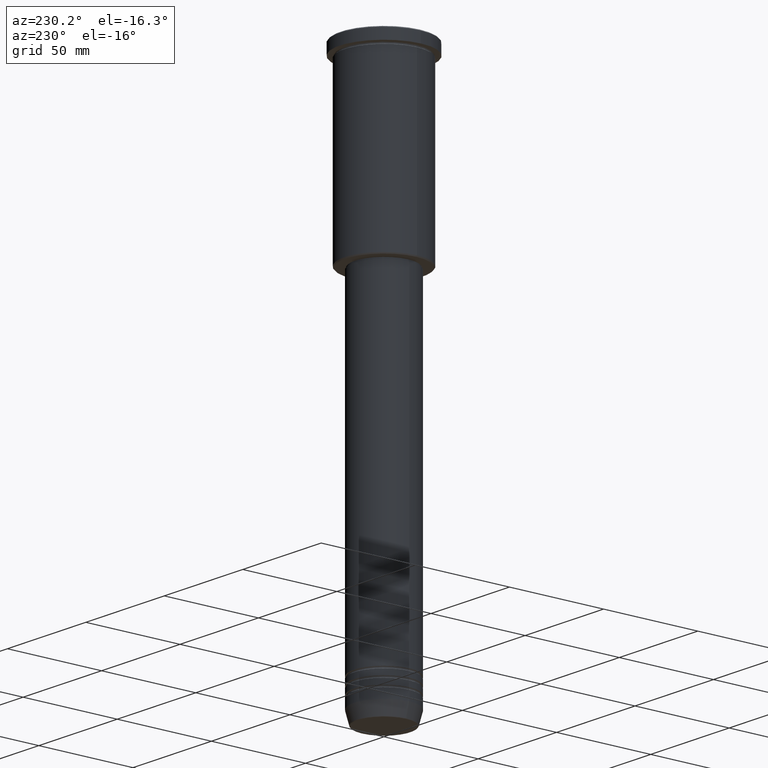
[diagram: clean part render]
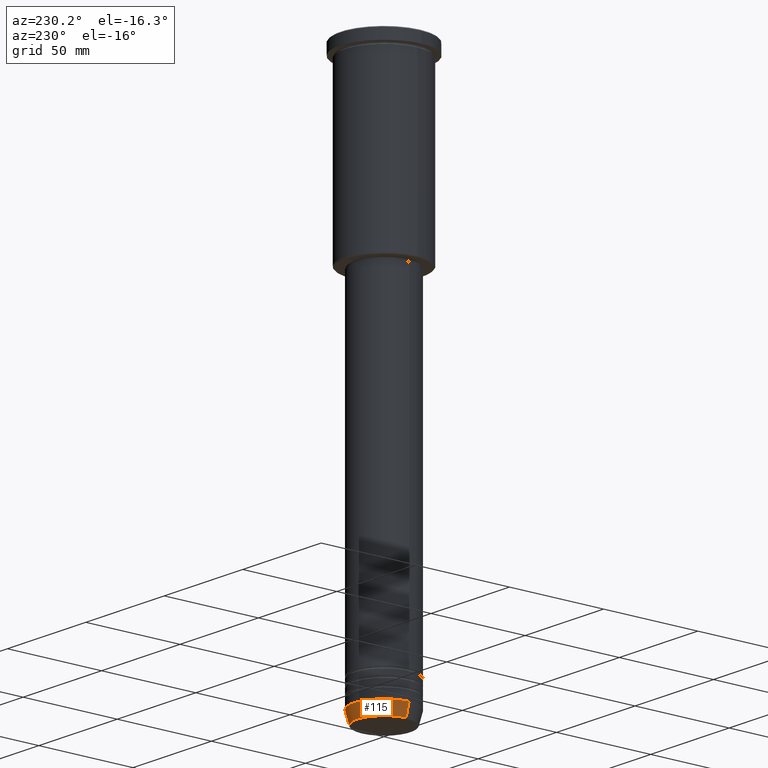
[diagram: same view with one face highlighted and labeled with its STEP entity id]
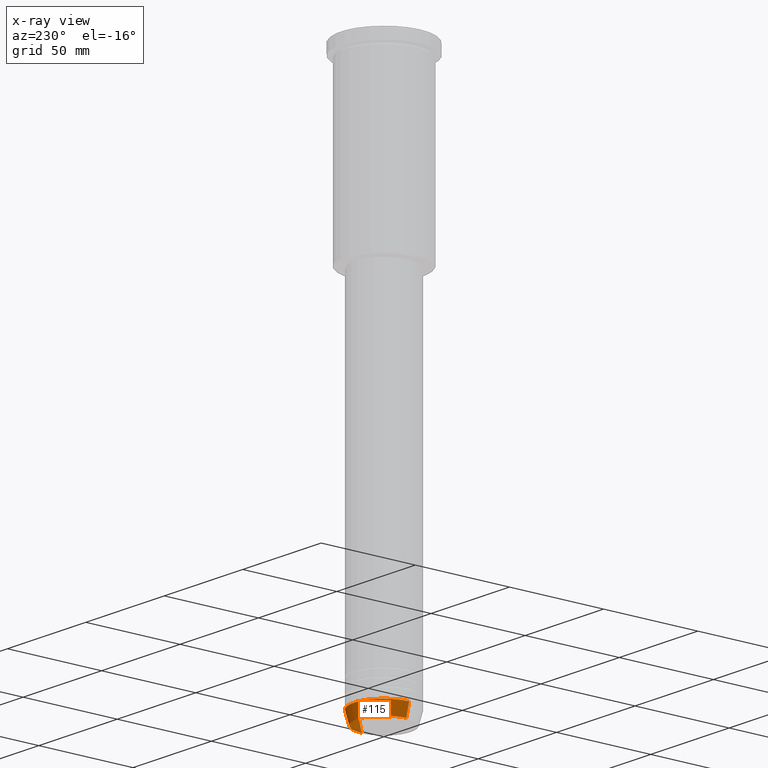
[diagram: x-ray of the same camera — body ghosted, the highlighted face saturated]
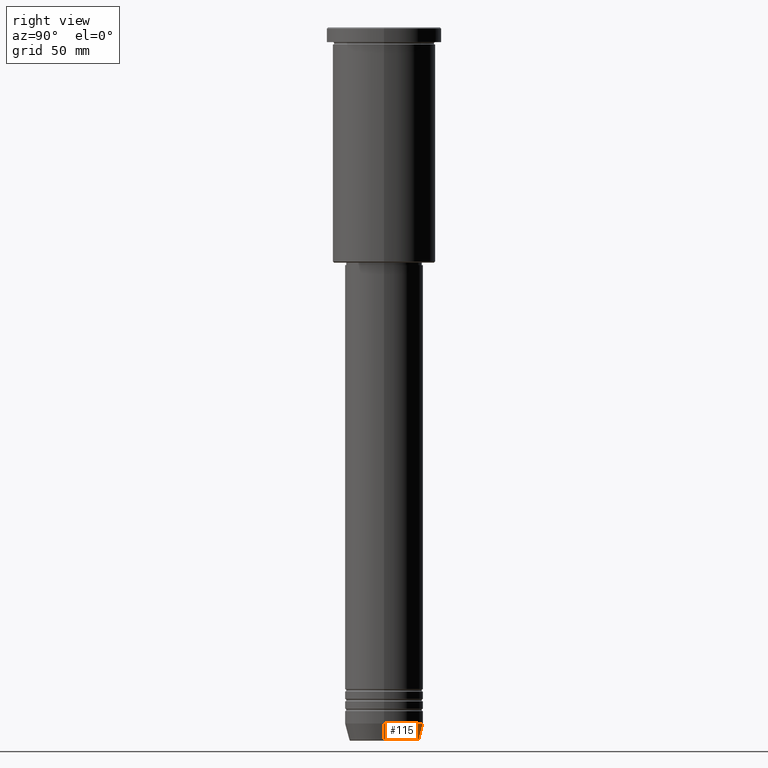
[diagram: same view with one face highlighted and labeled with its STEP entity id]
A machine part, auxiliary view. The second image highlights one B-rep face of the part: STEP entity #115.
The next image is the same camera in x-ray: the body ghosted, the highlighted face saturated — about 0% of this face is hidden behind the body in this view.
A second angle (right view) of the same face is appended — the face is thin or edge-on in the first view.
In plain terms, the highlighted conical surface has half-angle 15 deg.
Its self-contained STEP definition (entity closure, byte-faithful):
#8 = EDGE_CURVE ( 'NONE', #307, #326, #331, .T. ) ;
#17 = LINE ( 'NONE', #571, #394 ) ;
#77 = ORIENTED_EDGE ( 'NONE', *, *, #616, .F. ) ;
#88 = CARTESIAN_POINT ( 'NONE',  ( 0.000000000000000000, 0.000000000000000000, -284.0000000000000568 ) ) ;
#108 = CARTESIAN_POINT ( 'NONE',  ( 16.00000000000000000, 0.000000000000000000, -284.0000000000000568 ) ) ;
#111 = CONICAL_SURFACE ( 'NONE', #547, 16.00000000000000000, 0.2617993877991500740 ) ;
#115 = ADVANCED_FACE ( 'NONE', ( #116 ), #111, .T. ) ;
#116 = FACE_OUTER_BOUND ( 'NONE', #404, .T. ) ;
#181 = ORIENTED_EDGE ( 'NONE', *, *, #267, .T. ) ;
#229 = LINE ( 'NONE', #844, #940 ) ;
#251 = DIRECTION ( 'NONE',  ( -0.000000000000000000, -0.000000000000000000, 1.000000000000000000 ) ) ;
#255 = CARTESIAN_POINT ( 'NONE',  ( -16.00000000000000000, 1.959434878635765131E-15, -284.0000000000000568 ) ) ;
#267 = EDGE_CURVE ( 'NONE', #326, #952, #229, .T. ) ;
#307 = VERTEX_POINT ( 'NONE', #408 ) ;
#326 = VERTEX_POINT ( 'NONE', #505 ) ;
#331 = CIRCLE ( 'NONE', #999, 14.22365507213718772 ) ;
#348 = DIRECTION ( 'NONE',  ( 1.000000000000000000, 0.000000000000000000, 0.000000000000000000 ) ) ;
#394 = VECTOR ( 'NONE', #1093, 1000.000000000000000 ) ;
#404 = EDGE_LOOP ( 'NONE', ( #525, #181, #982, #77 ) ) ;
#408 = CARTESIAN_POINT ( 'NONE',  ( 14.22365507213718772, 0.000000000000000000, -290.6294095225512706 ) ) ;
#443 = EDGE_CURVE ( 'NONE', #602, #952, #661, .T. ) ;
#505 = CARTESIAN_POINT ( 'NONE',  ( -14.22365507213718772, 1.850665122131323337E-15, -290.6294095225512706 ) ) ;
#525 = ORIENTED_EDGE ( 'NONE', *, *, #8, .T. ) ;
#543 = DIRECTION ( 'NONE',  ( 1.000000000000000000, 0.000000000000000000, 0.000000000000000000 ) ) ;
#547 = AXIS2_PLACEMENT_3D ( 'NONE', #1017, #834, #565 ) ;
#565 = DIRECTION ( 'NONE',  ( 1.000000000000000000, 0.000000000000000000, 0.000000000000000000 ) ) ;
#571 = CARTESIAN_POINT ( 'NONE',  ( 16.00000000000000000, 0.000000000000000000, -284.0000000000000568 ) ) ;
#602 = VERTEX_POINT ( 'NONE', #108 ) ;
#616 = EDGE_CURVE ( 'NONE', #307, #602, #17, .T. ) ;
#636 = DIRECTION ( 'NONE',  ( -0.000000000000000000, -0.000000000000000000, 1.000000000000000000 ) ) ;
#661 = CIRCLE ( 'NONE', #1098, 16.00000000000000000 ) ;
#834 = DIRECTION ( 'NONE',  ( -0.000000000000000000, -0.000000000000000000, 1.000000000000000000 ) ) ;
#844 = CARTESIAN_POINT ( 'NONE',  ( -16.00000000000000000, 1.959434878635765131E-15, -284.0000000000000568 ) ) ;
#940 = VECTOR ( 'NONE', #1126, 1000.000000000000000 ) ;
#952 = VERTEX_POINT ( 'NONE', #255 ) ;
#982 = ORIENTED_EDGE ( 'NONE', *, *, #443, .F. ) ;
#999 = AXIS2_PLACEMENT_3D ( 'NONE', #1087, #636, #543 ) ;
#1017 = CARTESIAN_POINT ( 'NONE',  ( 0.000000000000000000, 0.000000000000000000, -284.0000000000000568 ) ) ;
#1087 = CARTESIAN_POINT ( 'NONE',  ( 0.000000000000000000, 0.000000000000000000, -290.6294095225512706 ) ) ;
#1093 = DIRECTION ( 'NONE',  ( 0.2588190451025213501, 0.000000000000000000, 0.9659258262890680902 ) ) ;
#1098 = AXIS2_PLACEMENT_3D ( 'NONE', #88, #251, #348 ) ;
#1126 = DIRECTION ( 'NONE',  ( -0.2588190451025213501, 3.169619151431772337E-17, 0.9659258262890680902 ) ) ;